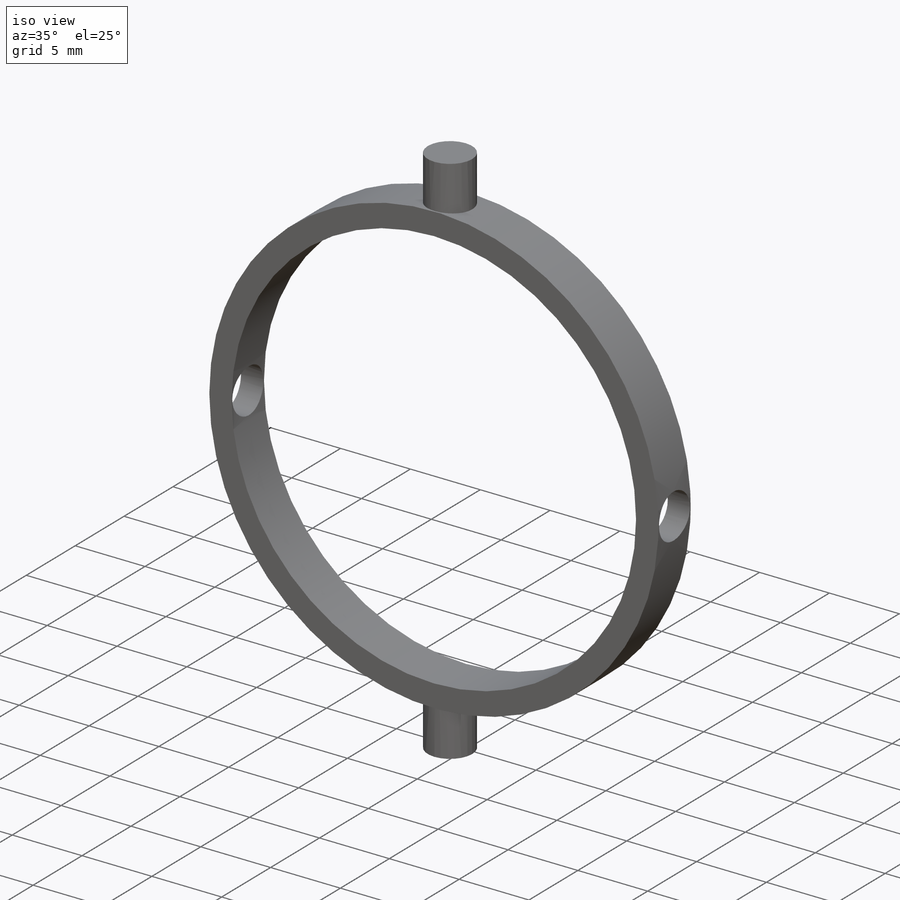
[diagram: iso view]
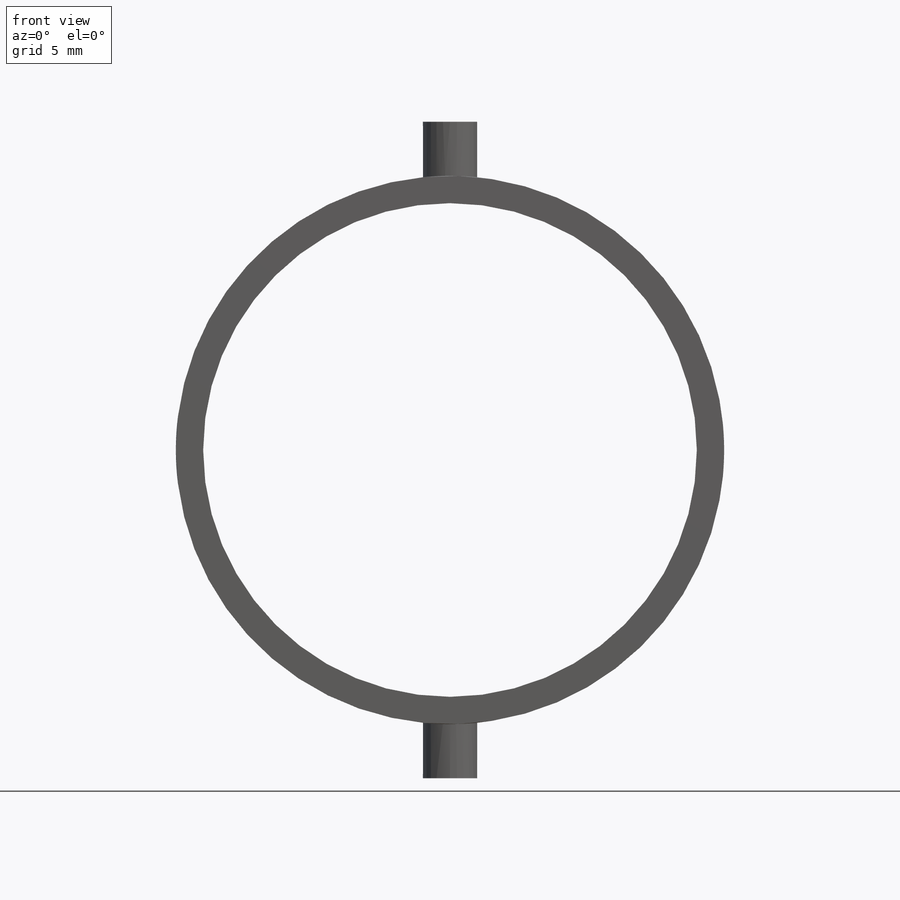
[diagram: front view]
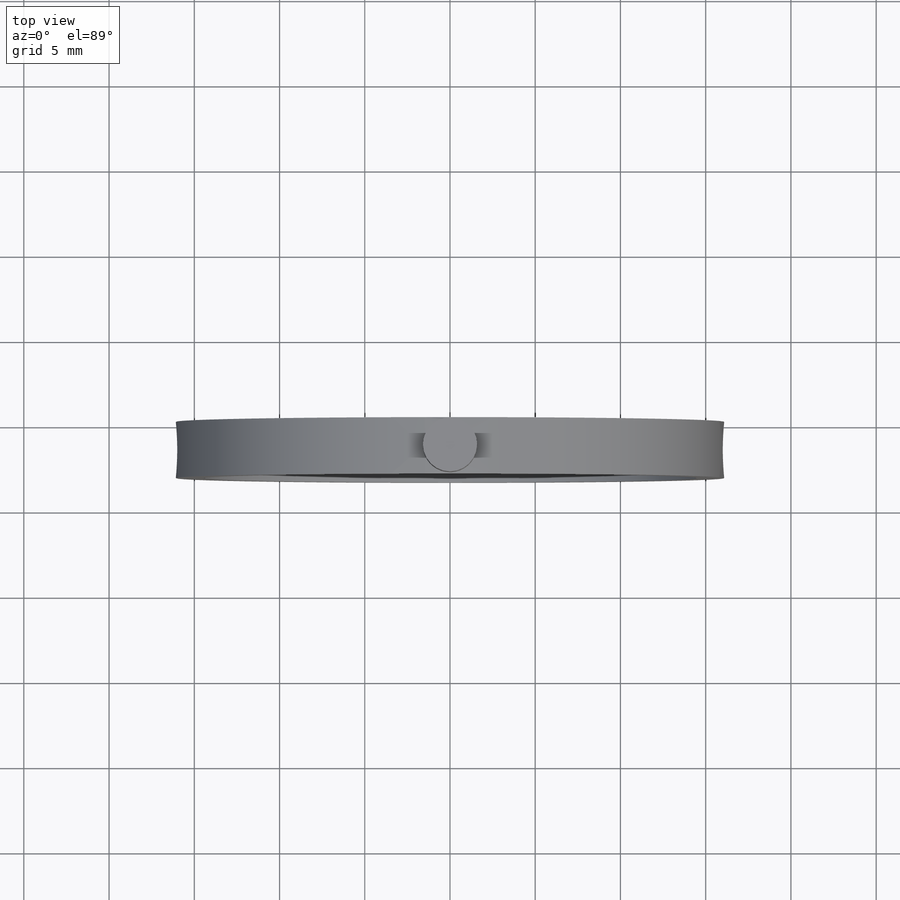
[diagram: top view]
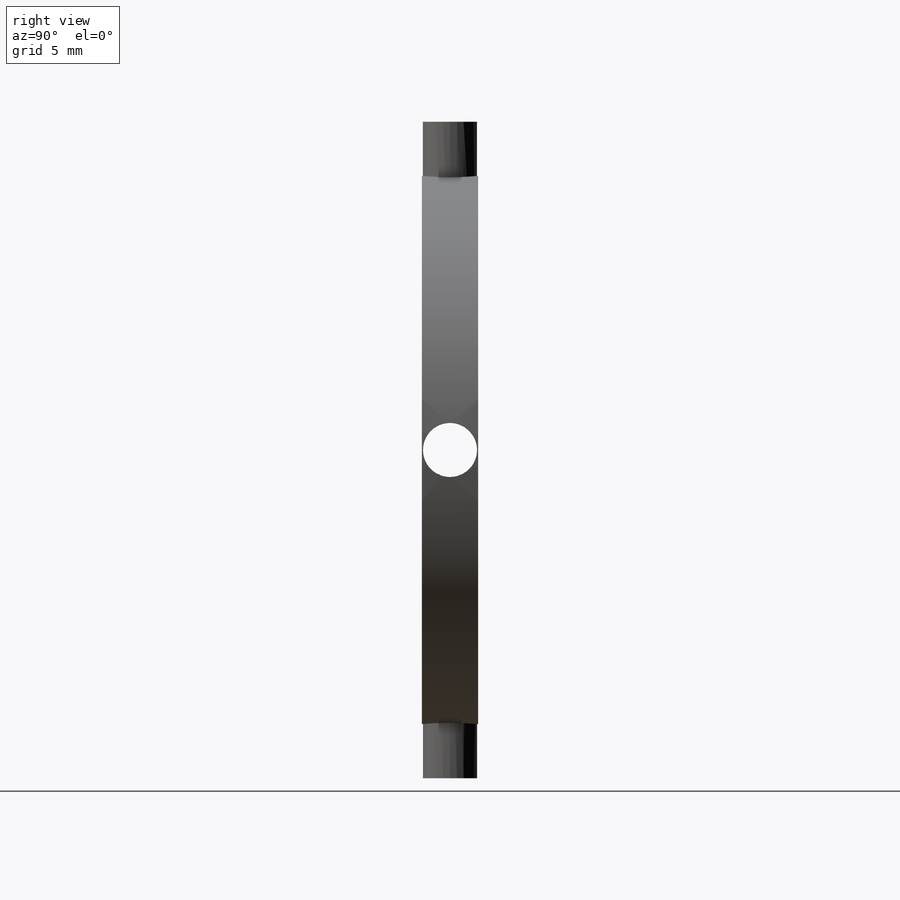
[diagram: right view]
SOLIDWORKS PART (.sldprt)
format: sldprt  version: not decoded by parser v0  size: 175,616 bytes
history: native  units: mm
features: sketch x3, extrude x2, plane x2, material x1, cut_extrude x1, pattern_circular x1 (+11 scaffold rows collapsed)
feature tree (21):
  scaffold x11  (default folders/planes/origin — collapsed)
  material  "Material <not specified>"
  sketch  "Sketch1"  dims[D1=28.956mm D2=1.6mm]
  extrude  "Boss-Extrude1"  Depth=3.302mm
  plane  "Plane1"
  sketch  "Sketch2"  dims[D1=3.175mm]
  cut_extrude  "Cut-Extrude1"  [1 undecoded]
  plane  "Plane2"
  sketch  "Sketch3"  dims[D1=3.175mm]
  extrude  "Boss-Extrude2"  Depth=3.175mm
  pattern_circular  "CirPattern1"  Count=2 Angle=360deg
decode coverage: 6 of 7 modeling features carry decoded parameters
note: 1 parameter value undecoded
note: suppression state not decoded; provenance and decode notes live in map.json
